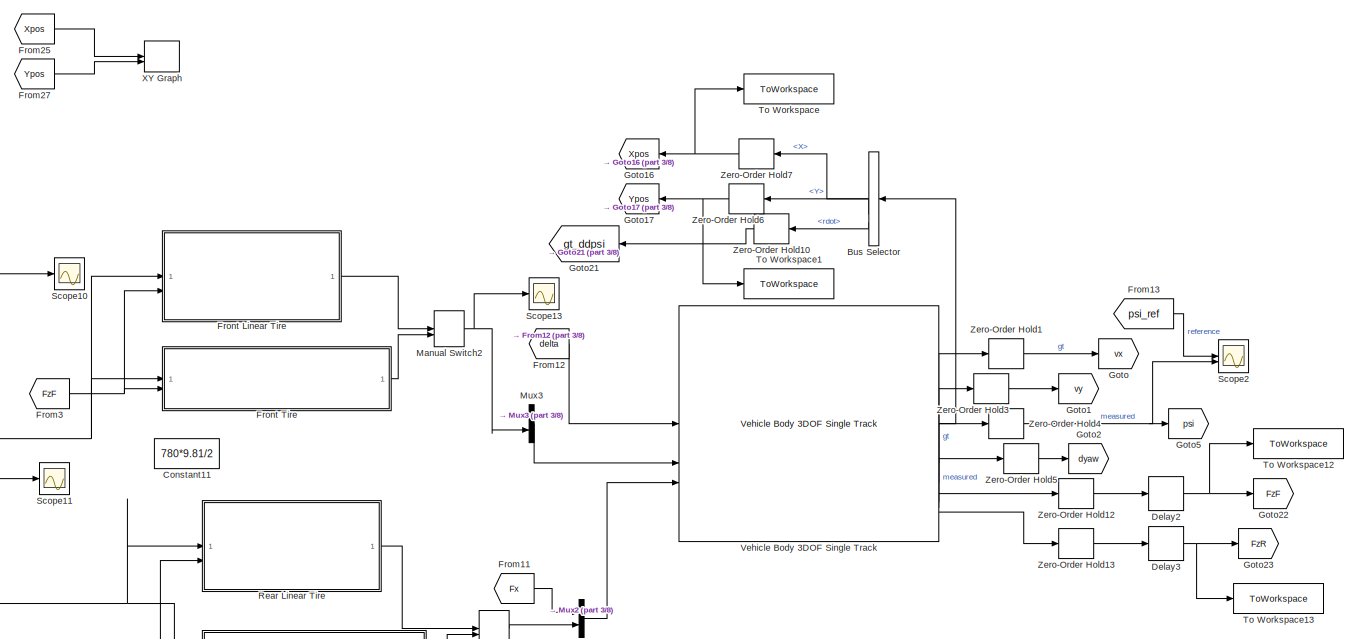
[diagram: root canvas - part 1/8, top center region]
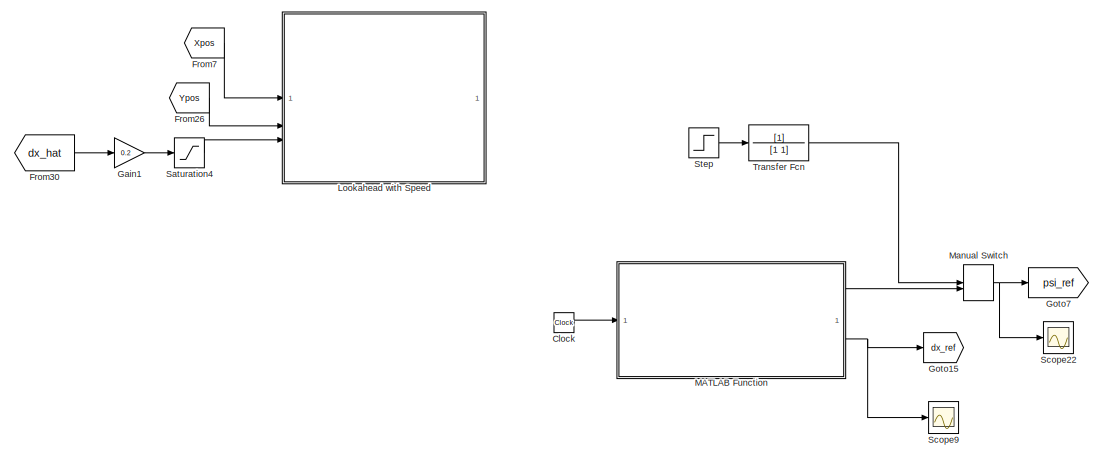
[diagram: root canvas - part 2/8, top left region]
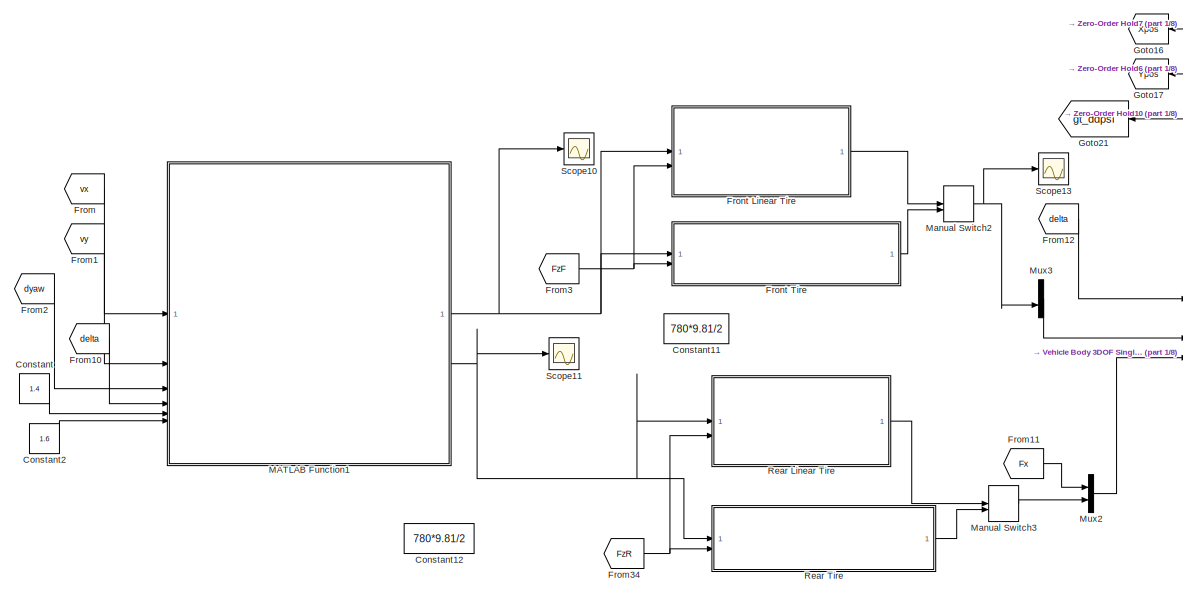
[diagram: root canvas - part 3/8, top center region]
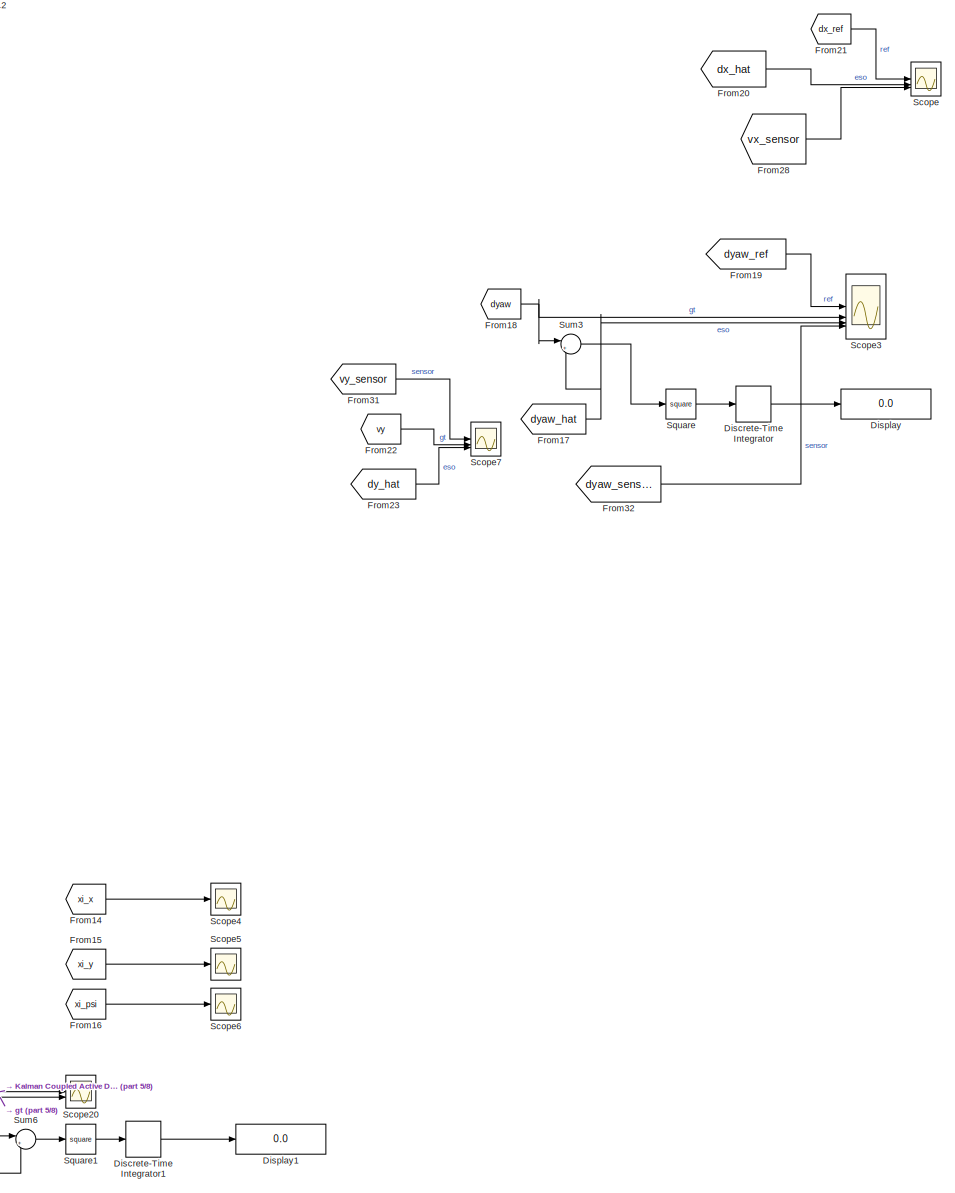
[diagram: root canvas - part 4/8, middle right region]
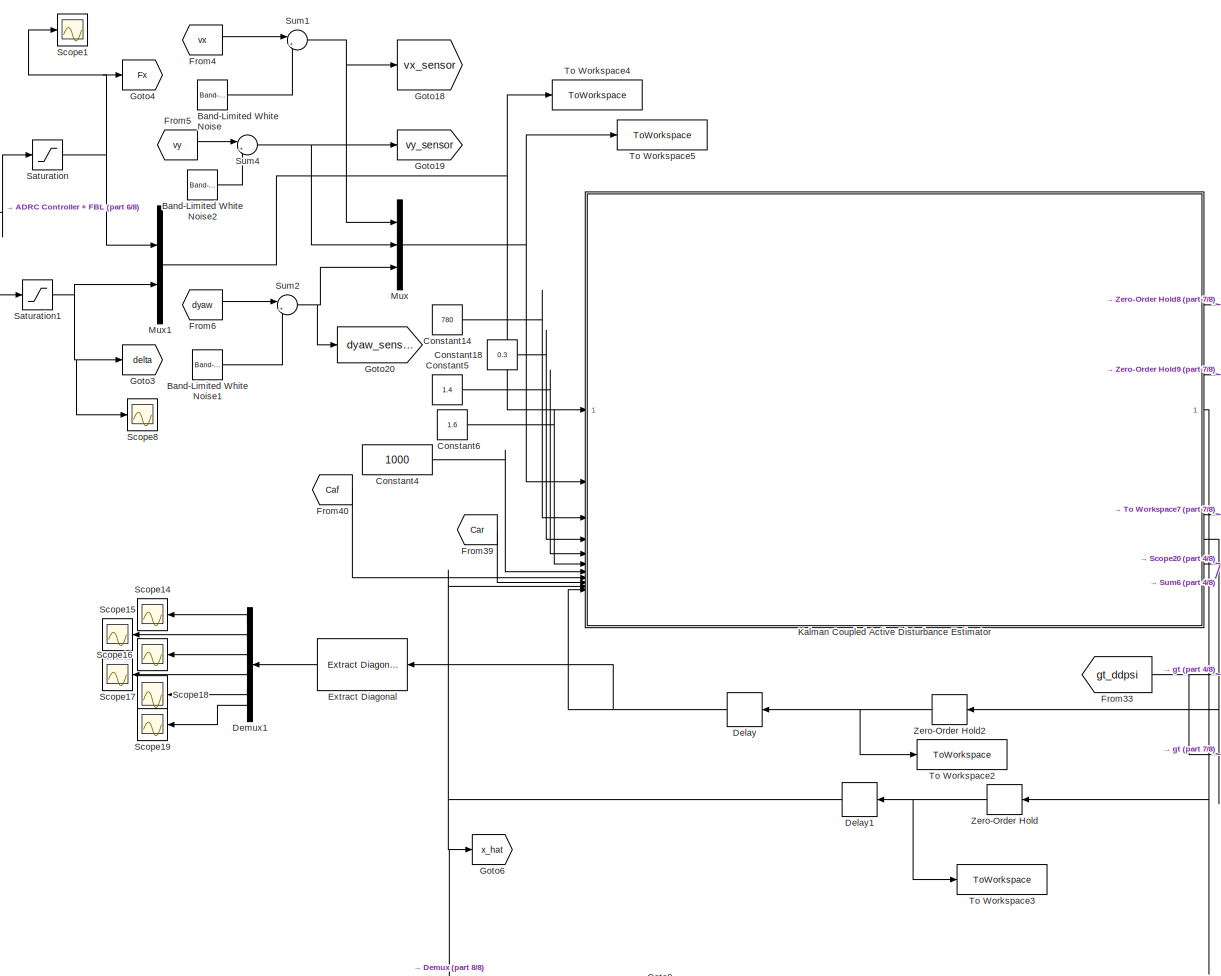
[diagram: root canvas - part 5/8, central region]
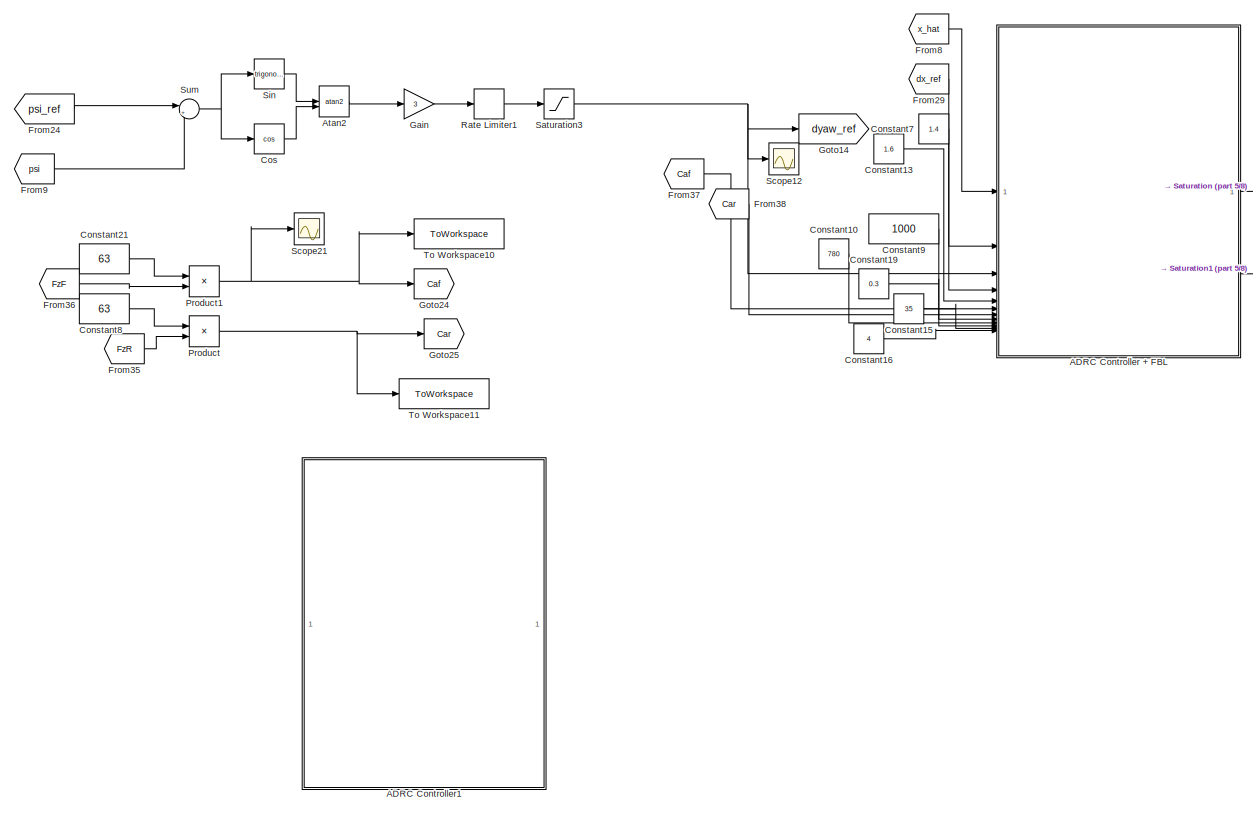
[diagram: root canvas - part 6/8, middle left region]
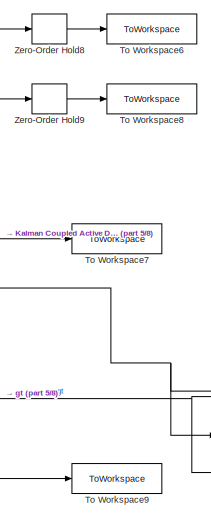
[diagram: root canvas - part 7/8, bottom right region]
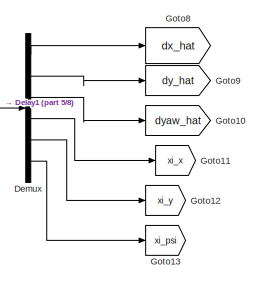
[diagram: root canvas - part 8/8, bottom center region]
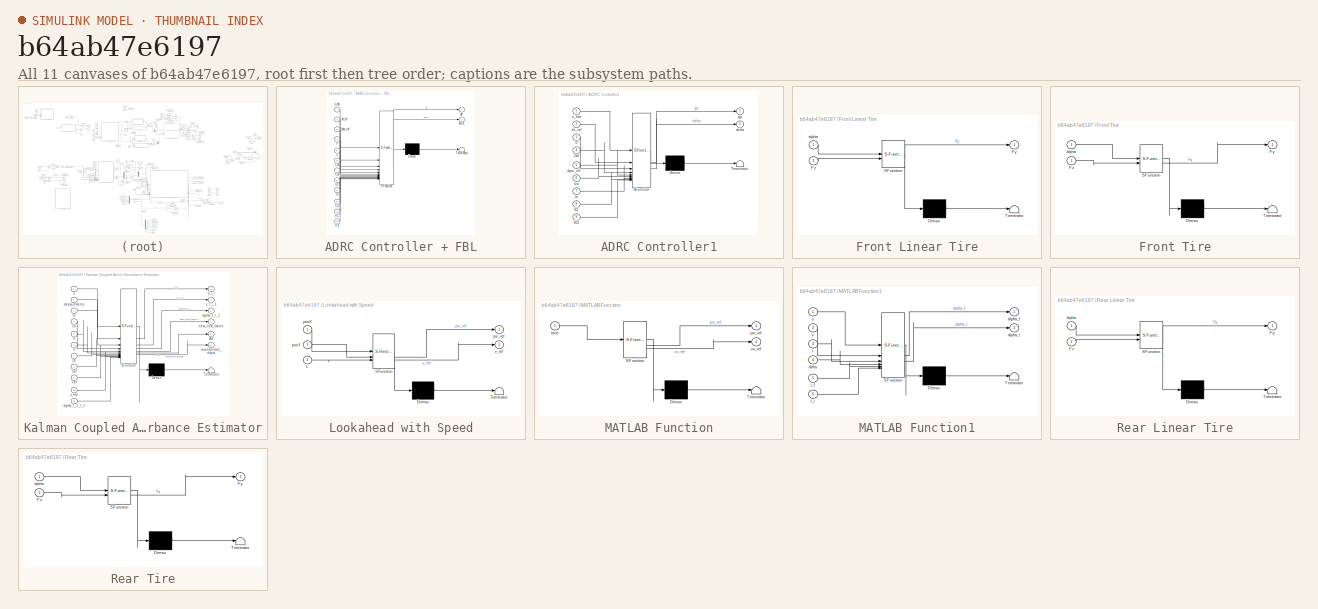
[diagram: thumbnail index - all 11 canvases of the model, root first then tree order]
MODEL slx_b64ab47e6197
KIND model
CONFIG AbsTol = auto
CONFIG EnableMultiTasking = off
CONFIG FixedStep = auto
CONFIG MaxStep = auto
CONFIG MinStep = auto
CONFIG RelTol = 1e-3
CONFIG SampleTimeConstraint = Unconstrained
CONFIG SolverName = VariableStepAuto
CONFIG StartTime = 0.0
CONFIG StopTime = 10
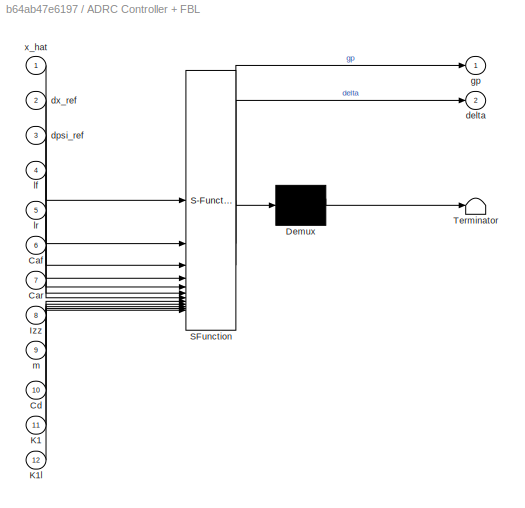
BLOCK [SubSystem] ADRC Controller + FBL
  ErrorFcn = Stateflow.Translate.translate
  PermitHierarchicalResolution = ExplicitOnly
  SFBlockType = MATLAB Function
  TreatAsAtomicUnit = on
BLOCK [Demux] ADRC Controller + FBL/ Demux 
  Outputs = 1
BLOCK [S-Function] ADRC Controller + FBL/ SFunction 
  EnableBusSupport = on
  FunctionName = sf_sfun
  PortCounts = [12 3]
  SFcnIsStateOwnerBlock = off
  SFunctionDeploymentMode = off
  Tag = Stateflow S-Function 4
BLOCK [Terminator] ADRC Controller + FBL/ Terminator 
BLOCK [Inport] ADRC Controller + FBL/Caf
  Port = 6
BLOCK [Inport] ADRC Controller + FBL/Car
  Port = 7
BLOCK [Inport] ADRC Controller + FBL/Cd
  Port = 10
BLOCK [Inport] ADRC Controller + FBL/Izz
  Port = 8
BLOCK [Inport] ADRC Controller + FBL/K1
  Port = 11
BLOCK [Inport] ADRC Controller + FBL/K1l
  Port = 12
BLOCK [Outport] ADRC Controller + FBL/delta
  Port = 2
BLOCK [Inport] ADRC Controller + FBL/dpsi_ref
  Port = 3
BLOCK [Inport] ADRC Controller + FBL/dx_ref
  Port = 2
BLOCK [Outport] ADRC Controller + FBL/gp
BLOCK [Inport] ADRC Controller + FBL/lf
  Port = 4
BLOCK [Inport] ADRC Controller + FBL/lr
  Port = 5
BLOCK [Inport] ADRC Controller + FBL/m
  Port = 9
BLOCK [Inport] ADRC Controller + FBL/x_hat
BLOCK [SubSystem] ADRC Controller1
  Commented = on
  ErrorFcn = Stateflow.Translate.translate
  PermitHierarchicalResolution = ExplicitOnly
  SFBlockType = MATLAB Function
  TreatAsAtomicUnit = on
BLOCK [Demux] ADRC Controller1/ Demux 
  Outputs = 1
BLOCK [S-Function] ADRC Controller1/ SFunction 
  EnableBusSupport = on
  FunctionName = sf_sfun
  PortCounts = [9 3]
  SFcnIsStateOwnerBlock = off
  SFunctionDeploymentMode = off
  Tag = Stateflow S-Function 5
BLOCK [Terminator] ADRC Controller1/ Terminator 
BLOCK [Inport] ADRC Controller1/Caf
  Port = 4
BLOCK [Inport] ADRC Controller1/Izz
  Port = 6
BLOCK [Inport] ADRC Controller1/K1
  Port = 8
BLOCK [Inport] ADRC Controller1/K1l
  Port = 9
BLOCK [Outport] ADRC Controller1/delta
  Port = 2
BLOCK [Inport] ADRC Controller1/dpsi_ref
  Port = 5
BLOCK [Inport] ADRC Controller1/dx_ref
  Port = 2
BLOCK [Outport] ADRC Controller1/gp
BLOCK [Inport] ADRC Controller1/lf
  Port = 3
BLOCK [Inport] ADRC Controller1/m
  Port = 7
BLOCK [Inport] ADRC Controller1/x_hat
BLOCK [Trigonometry] Atan2
  Operator = atan2
BLOCK [Reference] Band-Limited White Noise  REF=simulink/Sources/Band-Limited
White Noise
  SourceBlock = simulink/Sources/Band-Limited\nWhite Noise
  SourceType = Band-Limited White Noise.
BLOCK [Reference] Band-Limited White Noise1  REF=simulink/Sources/Band-Limited
White Noise
  SourceBlock = simulink/Sources/Band-Limited\nWhite Noise
  SourceType = Band-Limited White Noise.
BLOCK [Reference] Band-Limited White Noise2  REF=simulink/Sources/Band-Limited
White Noise
  SourceBlock = simulink/Sources/Band-Limited\nWhite Noise
  SourceType = Band-Limited White Noise.
BLOCK [BusSelector] Bus Selector
  OutputSignals = InertFrm.Cg.Disp.X,InertFrm.Cg.Disp.Y,BdyFrm.Cg.AngAcc.rdot
BLOCK [Clock] Clock
BLOCK [Constant] Constant
  Value = 1.4
BLOCK [Constant] Constant10
  Value = 780
BLOCK [Constant] Constant11
  Value = 780*9.81/2
BLOCK [Constant] Constant12
  Value = 780*9.81/2
BLOCK [Constant] Constant13
  Value = 1.6
BLOCK [Constant] Constant14
  Value = 780
BLOCK [Constant] Constant15
  Value = 35
BLOCK [Constant] Constant16
  Value = 4
BLOCK [Constant] Constant18
  Value = 0.3
BLOCK [Constant] Constant19
  Value = 0.3
BLOCK [Constant] Constant2
  Value = 1.6
BLOCK [Constant] Constant21
  Value = 63
BLOCK [Constant] Constant4
  Value = 1000
BLOCK [Constant] Constant5
  Value = 1.4
BLOCK [Constant] Constant6
  Value = 1.6
BLOCK [Constant] Constant7
  Value = 1.4
BLOCK [Constant] Constant8
  Value = 63
BLOCK [Constant] Constant9
  Value = 1000
BLOCK [Trigonometry] Cos
  Operator = cos
BLOCK [Delay] Delay
  DelayLength = 1
  InitialCondition = [eye(6)]*0
  InputPortMap = u0
  SampleTime = 0.01
BLOCK [Delay] Delay1
  DelayLength = 1
  InitialCondition = [5; 0; 0; 0; 0; 0]
  InputPortMap = u0
  SampleTime = 0.01
BLOCK [Delay] Delay2
  DelayLength = 1
  InitialCondition = 780*9.81/2
  InputPortMap = u0
  SampleTime = 0.01
BLOCK [Delay] Delay3
  DelayLength = 1
  InitialCondition = 780*9.81/2
  InputPortMap = u0
  SampleTime = 0.01
BLOCK [Demux] Demux
  Outputs = 6
BLOCK [Demux] Demux1
  Outputs = 6
BLOCK [DiscreteIntegrator] Discrete-Time Integrator
  ICPrevOutput = DiscIntNeverNeededParam
  ICPrevScaledInput = DiscIntNeverNeededParam
  InitialConditionSetting = Auto
  SampleTime = 0.01
BLOCK [DiscreteIntegrator] Discrete-Time Integrator1
  ICPrevOutput = DiscIntNeverNeededParam
  ICPrevScaledInput = DiscIntNeverNeededParam
  InitialConditionSetting = Auto
  SampleTime = 0.01
BLOCK [Display] Display
  Decimation = 1
BLOCK [Display] Display1
  Decimation = 1
BLOCK [Reference] Extract Diagonal  REF=matrix_library/Extract Diagonal
  LibrarySourceBlock = simulink/Matrix\nOperations/Extract Diagonal
  SourceBlock = matrix_library/Extract Diagonal
  SourceType = Extract Diagonal
BLOCK [From] From
  GotoTag = vx
BLOCK [From] From1
  GotoTag = vy
BLOCK [From] From10
  GotoTag = delta
BLOCK [From] From11
  GotoTag = Fx
BLOCK [From] From12
  GotoTag = delta
BLOCK [From] From13
  GotoTag = psi_ref
BLOCK [From] From14
  GotoTag = xi_x
BLOCK [From] From15
  GotoTag = xi_y
BLOCK [From] From16
  GotoTag = xi_psi
BLOCK [From] From17
  GotoTag = dyaw_hat
BLOCK [From] From18
  GotoTag = dyaw
BLOCK [From] From19
  GotoTag = dyaw_ref
BLOCK [From] From2
  GotoTag = dyaw
BLOCK [From] From20
  GotoTag = dx_hat
BLOCK [From] From21
  GotoTag = dx_ref
BLOCK [From] From22
  GotoTag = vy
BLOCK [From] From23
  GotoTag = dy_hat
BLOCK [From] From24
  GotoTag = psi_ref
BLOCK [From] From25
  GotoTag = Xpos
BLOCK [From] From26
  Commented = on
  GotoTag = Ypos
BLOCK [From] From27
  GotoTag = Ypos
BLOCK [From] From28
  GotoTag = vx_sensor
BLOCK [From] From29
  GotoTag = dx_ref
BLOCK [From] From3
  GotoTag = FzF
BLOCK [From] From30
  Commented = on
  GotoTag = dx_hat
BLOCK [From] From31
  GotoTag = vy_sensor
BLOCK [From] From32
  GotoTag = dyaw_sensor
BLOCK [From] From33
  GotoTag = gt_ddpsi
BLOCK [From] From34
  GotoTag = FzR
BLOCK [From] From35
  GotoTag = FzR
BLOCK [From] From36
  GotoTag = FzF
BLOCK [From] From37
  GotoTag = Caf
BLOCK [From] From38
  GotoTag = Car
BLOCK [From] From39
  GotoTag = Car
BLOCK [From] From4
  GotoTag = vx
BLOCK [From] From40
  GotoTag = Caf
BLOCK [From] From5
  GotoTag = vy
BLOCK [From] From6
  GotoTag = dyaw
BLOCK [From] From7
  Commented = on
  GotoTag = Xpos
BLOCK [From] From8
  GotoTag = x_hat
BLOCK [From] From9
  GotoTag = psi
BLOCK [SubSystem] Front Linear Tire
  ErrorFcn = Stateflow.Translate.translate
  PermitHierarchicalResolution = ExplicitOnly
  SFBlockType = MATLAB Function
  TreatAsAtomicUnit = on
BLOCK [Demux] Front Linear Tire/ Demux 
  Outputs = 1
BLOCK [S-Function] Front Linear Tire/ SFunction 
  EnableBusSupport = on
  FunctionName = sf_sfun
  PortCounts = [2 2]
  SFcnIsStateOwnerBlock = off
  SFunctionDeploymentMode = off
  Tag = Stateflow S-Function 9
BLOCK [Terminator] Front Linear Tire/ Terminator 
BLOCK [Outport] Front Linear Tire/Fy
BLOCK [Inport] Front Linear Tire/Fz
  Port = 2
BLOCK [Inport] Front Linear Tire/alpha
BLOCK [SubSystem] Front Tire
  ErrorFcn = Stateflow.Translate.translate
  PermitHierarchicalResolution = ExplicitOnly
  SFBlockType = MATLAB Function
  TreatAsAtomicUnit = on
BLOCK [Demux] Front Tire/ Demux 
  Outputs = 1
BLOCK [S-Function] Front Tire/ SFunction 
  EnableBusSupport = on
  FunctionName = sf_sfun
  PortCounts = [2 2]
  SFcnIsStateOwnerBlock = off
  SFunctionDeploymentMode = off
  Tag = Stateflow S-Function 3
BLOCK [Terminator] Front Tire/ Terminator 
BLOCK [Outport] Front Tire/Fy
BLOCK [Inport] Front Tire/Fz
  Port = 2
BLOCK [Inport] Front Tire/alpha
BLOCK [Gain] Gain
  Gain = 3
BLOCK [Gain] Gain1
  Commented = on
  Gain = 0.2
BLOCK [Goto] Goto
  GotoTag = vx
BLOCK [Goto] Goto1
  GotoTag = vy
BLOCK [Goto] Goto10
  GotoTag = dyaw_hat
BLOCK [Goto] Goto11
  GotoTag = xi_x
BLOCK [Goto] Goto12
  GotoTag = xi_y
BLOCK [Goto] Goto13
  GotoTag = xi_psi
BLOCK [Goto] Goto14
  GotoTag = dyaw_ref
BLOCK [Goto] Goto15
  GotoTag = dx_ref
BLOCK [Goto] Goto16
  GotoTag = Xpos
BLOCK [Goto] Goto17
  GotoTag = Ypos
BLOCK [Goto] Goto18
  GotoTag = vx_sensor
BLOCK [Goto] Goto19
  GotoTag = vy_sensor
BLOCK [Goto] Goto2
  GotoTag = dyaw
BLOCK [Goto] Goto20
  GotoTag = dyaw_sensor
BLOCK [Goto] Goto21
  GotoTag = gt_ddpsi
BLOCK [Goto] Goto22
  GotoTag = FzF
BLOCK [Goto] Goto23
  GotoTag = FzR
BLOCK [Goto] Goto24
  GotoTag = Caf
BLOCK [Goto] Goto25
  GotoTag = Car
BLOCK [Goto] Goto3
  GotoTag = delta
BLOCK [Goto] Goto4
  GotoTag = Fx
BLOCK [Goto] Goto5
  GotoTag = psi
BLOCK [Goto] Goto6
  GotoTag = x_hat
BLOCK [Goto] Goto7
  GotoTag = psi_ref
BLOCK [Goto] Goto8
  GotoTag = dx_hat
BLOCK [Goto] Goto9
  GotoTag = dy_hat
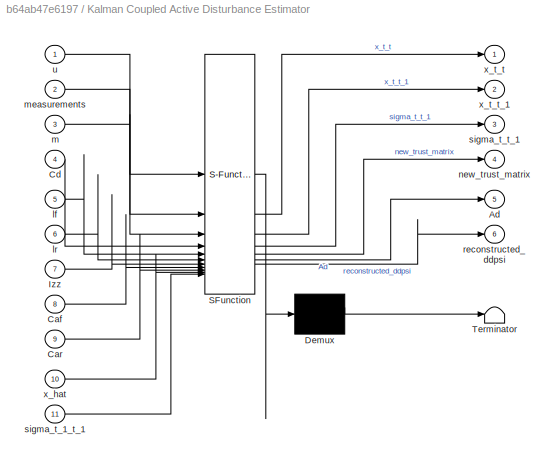
BLOCK [SubSystem] Kalman Coupled Active Disturbance Estimator
  ErrorFcn = Stateflow.Translate.translate
  PermitHierarchicalResolution = ExplicitOnly
  SFBlockType = MATLAB Function
  TreatAsAtomicUnit = on
BLOCK [Demux] Kalman Coupled Active Disturbance Estimator/ Demux 
  Outputs = 1
BLOCK [S-Function] Kalman Coupled Active Disturbance Estimator/ SFunction 
  EnableBusSupport = on
  FunctionName = sf_sfun
  PortCounts = [11 7]
  SFcnIsStateOwnerBlock = off
  SFunctionDeploymentMode = off
  Tag = Stateflow S-Function 6
BLOCK [Terminator] Kalman Coupled Active Disturbance Estimator/ Terminator 
BLOCK [Outport] Kalman Coupled Active Disturbance Estimator/Ad
  Port = 5
BLOCK [Inport] Kalman Coupled Active Disturbance Estimator/Caf
  Port = 8
BLOCK [Inport] Kalman Coupled Active Disturbance Estimator/Car
  Port = 9
BLOCK [Inport] Kalman Coupled Active Disturbance Estimator/Cd
  Port = 4
BLOCK [Inport] Kalman Coupled Active Disturbance Estimator/Izz
  Port = 7
BLOCK [Inport] Kalman Coupled Active Disturbance Estimator/lf
  Port = 5
BLOCK [Inport] Kalman Coupled Active Disturbance Estimator/lr
  Port = 6
BLOCK [Inport] Kalman Coupled Active Disturbance Estimator/m
  Port = 3
BLOCK [Inport] Kalman Coupled Active Disturbance Estimator/measurements
  Port = 2
BLOCK [Outport] Kalman Coupled Active Disturbance Estimator/new_trust_matrix
  Port = 4
BLOCK [Outport] Kalman Coupled Active Disturbance Estimator/reconstructed_ddpsi
  Port = 6
BLOCK [Inport] Kalman Coupled Active Disturbance Estimator/sigma_t_1_t_1
  Port = 11
BLOCK [Outport] Kalman Coupled Active Disturbance Estimator/sigma_t_t_1
  Port = 3
BLOCK [Inport] Kalman Coupled Active Disturbance Estimator/u
BLOCK [Inport] Kalman Coupled Active Disturbance Estimator/x_hat
  Port = 10
BLOCK [Outport] Kalman Coupled Active Disturbance Estimator/x_t_t
BLOCK [Outport] Kalman Coupled Active Disturbance Estimator/x_t_t_1
  Port = 2
BLOCK [SubSystem] Lookahead with Speed
  Commented = on
  ErrorFcn = Stateflow.Translate.translate
  PermitHierarchicalResolution = ExplicitOnly
  SFBlockType = MATLAB Function
  TreatAsAtomicUnit = on
BLOCK [Demux] Lookahead with Speed/ Demux 
  Outputs = 1
BLOCK [S-Function] Lookahead with Speed/ SFunction 
  EnableBusSupport = on
  FunctionName = sf_sfun
  Parameters = track
  PortCounts = [3 3]
  SFcnIsStateOwnerBlock = off
  SFunctionDeploymentMode = off
  Tag = Stateflow S-Function 8
BLOCK [Terminator] Lookahead with Speed/ Terminator 
BLOCK [Inport] Lookahead with Speed/L
  Port = 3
BLOCK [Inport] Lookahead with Speed/posX
BLOCK [Inport] Lookahead with Speed/posY
  Port = 2
BLOCK [Outport] Lookahead with Speed/psi_ref
BLOCK [Outport] Lookahead with Speed/v_ref
  Port = 2
BLOCK [SubSystem] MATLAB Function
  ErrorFcn = Stateflow.Translate.translate
  PermitHierarchicalResolution = ExplicitOnly
  SFBlockType = MATLAB Function
  TreatAsAtomicUnit = on
BLOCK [Demux] MATLAB Function/ Demux 
  Outputs = 1
BLOCK [S-Function] MATLAB Function/ SFunction 
  EnableBusSupport = on
  FunctionName = sf_sfun
  PortCounts = [1 3]
  SFcnIsStateOwnerBlock = off
  SFunctionDeploymentMode = off
  Tag = Stateflow S-Function 7
BLOCK [Terminator] MATLAB Function/ Terminator 
BLOCK [Outport] MATLAB Function/psi_ref
BLOCK [Inport] MATLAB Function/time
BLOCK [Outport] MATLAB Function/vx_ref
  Port = 2
BLOCK [SubSystem] MATLAB Function1
  ErrorFcn = Stateflow.Translate.translate
  PermitHierarchicalResolution = ExplicitOnly
  SFBlockType = MATLAB Function
  TreatAsAtomicUnit = on
BLOCK [Demux] MATLAB Function1/ Demux 
  Outputs = 1
BLOCK [S-Function] MATLAB Function1/ SFunction 
  EnableBusSupport = on
  FunctionName = sf_sfun
  PortCounts = [6 3]
  SFcnIsStateOwnerBlock = off
  SFunctionDeploymentMode = off
  Tag = Stateflow S-Function 1
BLOCK [Terminator] MATLAB Function1/ Terminator 
BLOCK [Outport] MATLAB Function1/alpha_f
BLOCK [Outport] MATLAB Function1/alpha_r
  Port = 2
BLOCK [Inport] MATLAB Function1/delta
  Port = 4
BLOCK [Inport] MATLAB Function1/l_f
  Port = 5
BLOCK [Inport] MATLAB Function1/l_r
  Port = 6
BLOCK [Inport] MATLAB Function1/r
  Port = 3
BLOCK [Inport] MATLAB Function1/u
BLOCK [Inport] MATLAB Function1/v
  Port = 2
BLOCK [ManualSwitch] Manual Switch
  CurrentSetting = 0
BLOCK [ManualSwitch] Manual Switch2
  CurrentSetting = 0
BLOCK [ManualSwitch] Manual Switch3
  CurrentSetting = 0
BLOCK [Mux] Mux
  DisplayOption = bar
  Inputs = 3
BLOCK [Mux] Mux1
  DisplayOption = bar
  Inputs = 2
BLOCK [Mux] Mux2
  DisplayOption = bar
  Inputs = 2
BLOCK [Mux] Mux3
  DisplayOption = bar
  Inputs = 2
BLOCK [Product] Product
BLOCK [Product] Product1
BLOCK [RateLimiter] Rate Limiter1
  FallingSlewLimit = -1.0
  RisingSlewLimit = 1.0
  SampleTimeMode = inherited
BLOCK [SubSystem] Rear Linear Tire
  ErrorFcn = Stateflow.Translate.translate
  PermitHierarchicalResolution = ExplicitOnly
  SFBlockType = MATLAB Function
  TreatAsAtomicUnit = on
BLOCK [Demux] Rear Linear Tire/ Demux 
  Outputs = 1
BLOCK [S-Function] Rear Linear Tire/ SFunction 
  EnableBusSupport = on
  FunctionName = sf_sfun
  PortCounts = [2 2]
  SFcnIsStateOwnerBlock = off
  SFunctionDeploymentMode = off
  Tag = Stateflow S-Function 10
BLOCK [Terminator] Rear Linear Tire/ Terminator 
BLOCK [Outport] Rear Linear Tire/Fy
BLOCK [Inport] Rear Linear Tire/Fz
  Port = 2
BLOCK [Inport] Rear Linear Tire/alpha
BLOCK [SubSystem] Rear Tire
  ErrorFcn = Stateflow.Translate.translate
  PermitHierarchicalResolution = ExplicitOnly
  SFBlockType = MATLAB Function
  TreatAsAtomicUnit = on
BLOCK [Demux] Rear Tire/ Demux 
  Outputs = 1
BLOCK [S-Function] Rear Tire/ SFunction 
  EnableBusSupport = on
  FunctionName = sf_sfun
  PortCounts = [2 2]
  SFcnIsStateOwnerBlock = off
  SFunctionDeploymentMode = off
  Tag = Stateflow S-Function 2
BLOCK [Terminator] Rear Tire/ Terminator 
BLOCK [Outport] Rear Tire/Fy
BLOCK [Inport] Rear Tire/Fz
  Port = 2
BLOCK [Inport] Rear Tire/alpha
BLOCK [Saturate] Saturation
  LowerLimit = -4000
  UpperLimit = 2000
BLOCK [Saturate] Saturation1
  LowerLimit = -0.262
  UpperLimit = 0.262
BLOCK [Saturate] Saturation3
  LowerLimit = -0.3
  UpperLimit = 0.3
BLOCK [Saturate] Saturation4
  Commented = on
  LowerLimit = 10
  UpperLimit = 50
BLOCK [Scope] Scope
  Floating = off
  NumInputPorts = 3
  ScopeSpecificationString = Simulink.scopes.TimeScopeBlockCfg('CurrentConfiguration', extmgr.ConfigurationSet(extmgr.Configuration('Core','General UI',true),extmgr.Configuration('Core','Source UI',true),extmgr.Configuration('Sources','WiredSimulink',true),extmgr.Configuration('Visuals','Time Domain',true,'SerializedDisplays',{struct('MinYLimReal','-1.96226','MaxYLimReal','67.31319','YLabelReal','','MinYLimMag','0.00000','Max...<+1568ch>
BLOCK [Scope] Scope1
  Floating = off
  NumInputPorts = 1
  ScopeSpecificationString = Simulink.scopes.TimeScopeBlockCfg('CurrentConfiguration', extmgr.ConfigurationSet(extmgr.Configuration('Core','General UI',true),extmgr.Configuration('Core','Source UI',true),extmgr.Configuration('Sources','WiredSimulink',true,'DataLoggingVariableName','ScopeData1'),extmgr.Configuration('Visuals','Time Domain',true,'SerializedDisplays',{struct('MinYLimReal','-4750.00000','MaxYLimReal','2750.00000'...<+1552ch>
BLOCK [Scope] Scope10
  Floating = off
  NumInputPorts = 1
  ScopeSpecificationString = Simulink.scopes.TimeScopeBlockCfg('CurrentConfiguration', extmgr.ConfigurationSet(extmgr.Configuration('Core','General UI',true),extmgr.Configuration('Core','Source UI',true),extmgr.Configuration('Sources','WiredSimulink',true,'DataLoggingVariableName','ScopeData10'),extmgr.Configuration('Visuals','Time Domain',true,'SerializedDisplays',{struct('MinYLimReal','-0.00198','MaxYLimReal','0.00313','YLa...<+1527ch>
BLOCK [Scope] Scope11
  Floating = off
  NumInputPorts = 1
  ScopeSpecificationString = Simulink.scopes.TimeScopeBlockCfg('CurrentConfiguration', extmgr.ConfigurationSet(extmgr.Configuration('Core','General UI',true),extmgr.Configuration('Core','Source UI',true),extmgr.Configuration('Sources','WiredSimulink',true,'DataLoggingVariableName','ScopeData11'),extmgr.Configuration('Visuals','Time Domain',true,'SerializedDisplays',{struct('MinYLimReal','-0.00161','MaxYLimReal','0.00348','YLa...<+1502ch>
BLOCK [Scope] Scope12
  Floating = off
  NumInputPorts = 1
  ScopeSpecificationString = Simulink.scopes.TimeScopeBlockCfg('CurrentConfiguration', extmgr.ConfigurationSet(extmgr.Configuration('Core','General UI',true),extmgr.Configuration('Core','Source UI',true),extmgr.Configuration('Sources','WiredSimulink',true,'DataLoggingVariableName','ScopeData2'),extmgr.Configuration('Visuals','Time Domain',true,'SerializedDisplays',{struct('MinYLimReal','-0.375','MaxYLimReal','0.375','YLabelRe...<+1476ch>
BLOCK [Scope] Scope13
  Floating = off
  NumInputPorts = 1
  ScopeSpecificationString = Simulink.scopes.TimeScopeBlockCfg('CurrentConfiguration', extmgr.ConfigurationSet(extmgr.Configuration('Core','General UI',true),extmgr.Configuration('Core','Source UI',true),extmgr.Configuration('Sources','WiredSimulink',true,'DataLoggingVariableName','ScopeData1'),extmgr.Configuration('Visuals','Time Domain',true,'SerializedDisplays',{struct('MinYLimReal','-1422.55156','MaxYLimReal','1251.0637',...<+1554ch>
BLOCK [Scope] Scope14
  Floating = off
  NumInputPorts = 1
  ScopeSpecificationString = Simulink.scopes.TimeScopeBlockCfg('CurrentConfiguration', extmgr.ConfigurationSet(extmgr.Configuration('Core','General UI',true),extmgr.Configuration('Core','Source UI',true),extmgr.Configuration('Sources','WiredSimulink',true,'DataLoggingVariableName','ScopeData1'),extmgr.Configuration('Visuals','Time Domain',true,'SerializedDisplays',{struct('MinYLimReal','-0.12375','MaxYLimReal','1.12486','YLab...<+1509ch>
BLOCK [Scope] Scope15
  Floating = off
  NumInputPorts = 1
  ScopeSpecificationString = Simulink.scopes.TimeScopeBlockCfg('CurrentConfiguration', extmgr.ConfigurationSet(extmgr.Configuration('Core','General UI',true),extmgr.Configuration('Core','Source UI',true),extmgr.Configuration('Sources','WiredSimulink',true,'DataLoggingVariableName','ScopeData2'),extmgr.Configuration('Visuals','Time Domain',true,'SerializedDisplays',{struct('MinYLimReal','-0.125','MaxYLimReal','1.125','YLabelRe...<+1473ch>
BLOCK [Scope] Scope16
  Floating = off
  NumInputPorts = 1
  ScopeSpecificationString = Simulink.scopes.TimeScopeBlockCfg('CurrentConfiguration', extmgr.ConfigurationSet(extmgr.Configuration('Core','General UI',true),extmgr.Configuration('Core','Source UI',true),extmgr.Configuration('Sources','WiredSimulink',true,'DataLoggingVariableName','ScopeData3'),extmgr.Configuration('Visuals','Time Domain',true,'SerializedDisplays',{struct('MinYLimReal','-0.12499','MaxYLimReal','1.125','YLabel...<+1477ch>
BLOCK [Scope] Scope17
  Floating = off
  NumInputPorts = 1
  ScopeSpecificationString = Simulink.scopes.TimeScopeBlockCfg('CurrentConfiguration', extmgr.ConfigurationSet(extmgr.Configuration('Core','General UI',true),extmgr.Configuration('Core','Source UI',true),extmgr.Configuration('Sources','WiredSimulink',true,'DataLoggingVariableName','ScopeData4'),extmgr.Configuration('Visuals','Time Domain',true,'SerializedDisplays',{struct('MinYLimReal','-17037.28503','MaxYLimReal','153345.565...<+1519ch>
BLOCK [Scope] Scope18
  Floating = off
  NumInputPorts = 1
  ScopeSpecificationString = Simulink.scopes.TimeScopeBlockCfg('CurrentConfiguration', extmgr.ConfigurationSet(extmgr.Configuration('Core','General UI',true),extmgr.Configuration('Core','Source UI',true),extmgr.Configuration('Sources','WiredSimulink',true,'DataLoggingVariableName','ScopeData5'),extmgr.Configuration('Visuals','Time Domain',true,'SerializedDisplays',{struct('MinYLimReal','-18040.52187','MaxYLimReal','162374.696...<+1519ch>
BLOCK [Scope] Scope19
  Floating = off
  NumInputPorts = 1
  ScopeSpecificationString = Simulink.scopes.TimeScopeBlockCfg('CurrentConfiguration', extmgr.ConfigurationSet(extmgr.Configuration('Core','General UI',true),extmgr.Configuration('Core','Source UI',true),extmgr.Configuration('Sources','WiredSimulink',true,'DataLoggingVariableName','ScopeData6'),extmgr.Configuration('Visuals','Time Domain',true,'SerializedDisplays',{struct('MinYLimReal','-4499.73592','MaxYLimReal','40497.62328...<+1510ch>
BLOCK [Scope] Scope2
  Floating = off
  NumInputPorts = 2
  ScopeSpecificationString = Simulink.scopes.TimeScopeBlockCfg('CurrentConfiguration', extmgr.ConfigurationSet(extmgr.Configuration('Core','General UI',true),extmgr.Configuration('Core','Source UI',true),extmgr.Configuration('Sources','WiredSimulink',true,'DataLoggingVariableName','ScopeData2'),extmgr.Configuration('Visuals','Time Domain',true,'SerializedDisplays',{struct('MinYLimReal','-0.00639','MaxYLimReal','0.05589','YLab...<+1540ch>
BLOCK [Scope] Scope20
  Floating = off
  NumInputPorts = 2
  ScopeSpecificationString = Simulink.scopes.TimeScopeBlockCfg('CurrentConfiguration', extmgr.ConfigurationSet(extmgr.Configuration('Core','General UI',true),extmgr.Configuration('Core','Source UI',true),extmgr.Configuration('Sources','WiredSimulink',true,'DataLoggingVariableName','ScopeData1'),extmgr.Configuration('Visuals','Time Domain',true,'SerializedDisplays',{struct('MinYLimReal','-0.67743','MaxYLimReal','0.49658','YLab...<+1586ch>
BLOCK [Scope] Scope21
  Floating = off
  NumInputPorts = 1
  ScopeSpecificationString = Simulink.scopes.TimeScopeBlockCfg('CurrentConfiguration', extmgr.ConfigurationSet(extmgr.Configuration('Core','General UI',true),extmgr.Configuration('Core','Source UI',true),extmgr.Configuration('Sources','WiredSimulink',true,'DataLoggingVariableName','ScopeData2'),extmgr.Configuration('Visuals','Time Domain',true,'SerializedDisplays',{struct('MinYLimReal','106396.94772','MaxYLimReal','255991.116...<+1566ch>
BLOCK [Scope] Scope22
  Floating = off
  NumInputPorts = 1
  ScopeSpecificationString = Simulink.scopes.TimeScopeBlockCfg('CurrentConfiguration', extmgr.ConfigurationSet(extmgr.Configuration('Core','General UI',true),extmgr.Configuration('Core','Source UI',true),extmgr.Configuration('Sources','WiredSimulink',true,'DataLoggingVariableName','ScopeData2'),extmgr.Configuration('Visuals','Time Domain',true,'SerializedDisplays',{struct('MinYLimReal','-0.05494','MaxYLimReal','0.06192','YLab...<+1489ch>
BLOCK [Scope] Scope3
  Floating = off
  NumInputPorts = 4
  ScopeSpecificationString = Simulink.scopes.TimeScopeBlockCfg('CurrentConfiguration', extmgr.ConfigurationSet(extmgr.Configuration('Core','General UI',true),extmgr.Configuration('Core','Source UI',true),extmgr.Configuration('Sources','WiredSimulink',true,'DataLoggingVariableName','ScopeData3'),extmgr.Configuration('Visuals','Time Domain',true,'SerializedDisplays',{struct('MinYLimReal','-0.03637','MaxYLimReal','0.07715','YLab...<+1665ch>
BLOCK [Scope] Scope4
  Floating = off
  NumInputPorts = 1
  ScopeSpecificationString = Simulink.scopes.TimeScopeBlockCfg('CurrentConfiguration', extmgr.ConfigurationSet(extmgr.Configuration('Core','General UI',true),extmgr.Configuration('Core','Source UI',true),extmgr.Configuration('Sources','WiredSimulink',true,'DataLoggingVariableName','ScopeData4'),extmgr.Configuration('Visuals','Time Domain',true,'SerializedDisplays',{struct('MinYLimReal','-899.46876','MaxYLimReal','612.78211','...<+1522ch>
BLOCK [Scope] Scope5
  Floating = off
  NumInputPorts = 1
  ScopeSpecificationString = Simulink.scopes.TimeScopeBlockCfg('CurrentConfiguration', extmgr.ConfigurationSet(extmgr.Configuration('Core','General UI',true),extmgr.Configuration('Core','Source UI',true),extmgr.Configuration('Sources','WiredSimulink',true,'DataLoggingVariableName','ScopeData5'),extmgr.Configuration('Visuals','Time Domain',true,'SerializedDisplays',{struct('MinYLimReal','-376.65444','MaxYLimReal','2832.72081',...<+1545ch>
BLOCK [Scope] Scope6
  Floating = off
  NumInputPorts = 1
  ScopeSpecificationString = Simulink.scopes.TimeScopeBlockCfg('CurrentConfiguration', extmgr.ConfigurationSet(extmgr.Configuration('Core','General UI',true),extmgr.Configuration('Core','Source UI',true),extmgr.Configuration('Sources','WiredSimulink',true,'DataLoggingVariableName','ScopeData6'),extmgr.Configuration('Visuals','Time Domain',true,'SerializedDisplays',{struct('MinYLimReal','-4263764.61305','MaxYLimReal','477737.9...<+1569ch>
BLOCK [Scope] Scope7
  Floating = off
  NumInputPorts = 3
  ScopeSpecificationString = Simulink.scopes.TimeScopeBlockCfg('CurrentConfiguration', extmgr.ConfigurationSet(extmgr.Configuration('Core','General UI',true),extmgr.Configuration('Core','Source UI',true),extmgr.Configuration('Sources','WiredSimulink',true,'DataLoggingVariableName','ScopeData7'),extmgr.Configuration('Visuals','Time Domain',true,'SerializedDisplays',{struct('MinYLimReal','-0.01629','MaxYLimReal','0.02942','YLab...<+1604ch>
BLOCK [Scope] Scope8
  Floating = off
  NumInputPorts = 1
  ScopeSpecificationString = Simulink.scopes.TimeScopeBlockCfg('CurrentConfiguration', extmgr.ConfigurationSet(extmgr.Configuration('Core','General UI',true),extmgr.Configuration('Core','Source UI',true),extmgr.Configuration('Sources','WiredSimulink',true,'DataLoggingVariableName','ScopeData1'),extmgr.Configuration('Visuals','Time Domain',true,'SerializedDisplays',{struct('MinYLimReal','-0.0389','MaxYLimReal','0.03502','YLabe...<+1529ch>
BLOCK [Scope] Scope9
  Floating = off
  NumInputPorts = 1
  ScopeSpecificationString = Simulink.scopes.TimeScopeBlockCfg('CurrentConfiguration', extmgr.ConfigurationSet(extmgr.Configuration('Core','General UI',true),extmgr.Configuration('Core','Source UI',true),extmgr.Configuration('Sources','WiredSimulink',true,'DataLoggingVariableName','ScopeData1'),extmgr.Configuration('Visuals','Time Domain',true,'SerializedDisplays',{struct('MinYLimReal','-5.00000','MaxYLimReal','45.00000','YLa...<+1546ch>
BLOCK [Trigonometry] Sin
BLOCK [Math] Square
  Operator = square
BLOCK [Math] Square1
  Operator = square
BLOCK [Step] Step
  After = 0.05
  SampleTime = 0
  Time = 5
BLOCK [Sum] Sum
  Inputs = |+-
BLOCK [Sum] Sum1
  Inputs = |++
BLOCK [Sum] Sum2
  Inputs = |++
BLOCK [Sum] Sum3
  Inputs = |+-
BLOCK [Sum] Sum4
  Inputs = |++
BLOCK [Sum] Sum6
  Inputs = |+-
BLOCK [ToWorkspace] To Workspace
  FixptAsFi = on
  MaxDataPoints = inf
  SampleTime = 0.01
  VariableName = Xpos
BLOCK [ToWorkspace] To Workspace1
  FixptAsFi = on
  MaxDataPoints = inf
  SampleTime = 0.01
  VariableName = Ypos
BLOCK [ToWorkspace] To Workspace10
  FixptAsFi = on
  MaxDataPoints = inf
  SampleTime = 0.01
  SaveFormat = Timeseries
  VariableName = Caf
BLOCK [ToWorkspace] To Workspace11
  FixptAsFi = on
  MaxDataPoints = inf
  SampleTime = 0.01
  SaveFormat = Timeseries
  VariableName = Car
BLOCK [ToWorkspace] To Workspace12
  FixptAsFi = on
  MaxDataPoints = inf
  SampleTime = 0.01
  SaveFormat = Timeseries
  VariableName = FzF
BLOCK [ToWorkspace] To Workspace13
  FixptAsFi = on
  MaxDataPoints = inf
  SampleTime = 0.01
  SaveFormat = Timeseries
  VariableName = FzR
BLOCK [ToWorkspace] To Workspace2
  FixptAsFi = on
  MaxDataPoints = inf
  SampleTime = 0.01
  Save2DSignal = 2-D array (concatenate along first dimension)
  SaveFormat = Timeseries
  VariableName = sigma_t_t
BLOCK [ToWorkspace] To Workspace3
  FixptAsFi = on
  MaxDataPoints = inf
  SampleTime = 0.01
  SaveFormat = Timeseries
  VariableName = x_t_t
BLOCK [ToWorkspace] To Workspace4
  FixptAsFi = on
  MaxDataPoints = inf
  SampleTime = 0.01
  SaveFormat = Timeseries
  VariableName = u
BLOCK [ToWorkspace] To Workspace5
  FixptAsFi = on
  MaxDataPoints = inf
  SampleTime = 0.01
  SaveFormat = Timeseries
  VariableName = measurements
BLOCK [ToWorkspace] To Workspace6
  FixptAsFi = on
  MaxDataPoints = inf
  SampleTime = 0.01
  SaveFormat = Timeseries
  VariableName = x_t_t_1
BLOCK [ToWorkspace] To Workspace7
  FixptAsFi = on
  MaxDataPoints = inf
  SampleTime = 0.01
  SaveFormat = Timeseries
  VariableName = Ad
BLOCK [ToWorkspace] To Workspace8
  FixptAsFi = on
  MaxDataPoints = inf
  SampleTime = 0.01
  Save2DSignal = 2-D array (concatenate along first dimension)
  SaveFormat = Timeseries
  VariableName = sigma_t_t_1
BLOCK [ToWorkspace] To Workspace9
  FixptAsFi = on
  MaxDataPoints = inf
  SampleTime = 0.01
  SaveFormat = Timeseries
  VariableName = gt_ddpsi
BLOCK [TransferFcn] Transfer Fcn
  Denominator = [1 1]
BLOCK [Reference] Vehicle Body 3DOF Single Track  REF=autolibshared/Vehicle Body 3DOF Single Track
  LibrarySourceBlock = vehdynlibeom/Vehicle Body 3DOF Single Track
  SourceBlock = autolibshared/Vehicle Body 3DOF Single Track
  SourceType = Vehicle Body 3DOF Lateral
BLOCK [Record] XY Graph
  CompatibilityTag = XY
  FileSettingsInternal = {"entries":[{"content":{"excelSettings":{"content":{},"type":"Streamout.ExcelSettings"}},"type":"Streamout.FileSettingStorage","uuid":""}],"packageUris":["http:\/\/schema.mathworks.com\/mf0\/streamout_blocks\/R2020a"],"version":"1.0"}
  Layout = [1 1]
  SignalsInternal = {"entries":[{"content":{"signals":[{"content":{"blockPath":[],"dimensions":[1],"domain":"","lineColor":"#a2142f","plots":[ 1 ],"port":1,"sid":[""],"signalID":1,"signalName":"From25"},"type":"RecordBlkView.Signal","uuid":""},{"content":{"blockPath":[],"dimensions":[1],"domain":"","lineColor":"#139fff","plots":[ 1 ],"port":2,"sid":[""],"signalID":2,"signalName":"From27"},"type":"RecordBlkView.Signal...<+158ch>
  VisualizationBindings = {"xyplotplugin":{"info":[{"series":[{"bindingParametersList":[{"parameter":"X-Axis","signalID":1,"signalName":"From25"},{"parameter":"Y-Axis","signalID":2,"signalName":"From27"}],"seriesID":0}],"subplotID":1}]}}
BLOCK [ZeroOrderHold] Zero-Order Hold
  SampleTime = 0.01
BLOCK [ZeroOrderHold] Zero-Order Hold1
  SampleTime = 0.01
BLOCK [ZeroOrderHold] Zero-Order Hold10
  SampleTime = 0.01
BLOCK [ZeroOrderHold] Zero-Order Hold12
  SampleTime = 0.01
BLOCK [ZeroOrderHold] Zero-Order Hold13
  SampleTime = 0.01
BLOCK [ZeroOrderHold] Zero-Order Hold2
  SampleTime = 0.01
BLOCK [ZeroOrderHold] Zero-Order Hold3
  SampleTime = 0.01
BLOCK [ZeroOrderHold] Zero-Order Hold4
  SampleTime = 0.01
BLOCK [ZeroOrderHold] Zero-Order Hold5
  SampleTime = 0.01
BLOCK [ZeroOrderHold] Zero-Order Hold6
  SampleTime = 0.01
BLOCK [ZeroOrderHold] Zero-Order Hold7
  SampleTime = 0.01
BLOCK [ZeroOrderHold] Zero-Order Hold8
  SampleTime = 0.01
BLOCK [ZeroOrderHold] Zero-Order Hold9
  SampleTime = 0.01
LINE ADRC Controller + FBL:1 -> Saturation:1
LINE ADRC Controller + FBL:2 -> Saturation1:1
LINE Atan2:1 -> Gain:1
LINE Band-Limited White Noise1:1 -> Sum2:2
LINE Band-Limited White Noise2:1 -> Sum4:2
LINE Band-Limited White Noise:1 -> Sum1:2
LINE Bus Selector:1 -> Zero-Order Hold7:1
LINE Bus Selector:2 -> Zero-Order Hold6:1
LINE Bus Selector:3 -> Zero-Order Hold10:1
LINE Clock:1 -> MATLAB Function:1
LINE Constant10:1 -> ADRC Controller + FBL:9
LINE Constant13:1 -> ADRC Controller + FBL:5
LINE Constant14:1 -> Kalman Coupled Active Disturbance Estimator:3
LINE Constant15:1 -> ADRC Controller + FBL:11
LINE Constant16:1 -> ADRC Controller + FBL:12
LINE Constant18:1 -> Kalman Coupled Active Disturbance Estimator:4
LINE Constant19:1 -> ADRC Controller + FBL:10
LINE Constant21:1 -> Product1:1
LINE Constant2:1 -> MATLAB Function1:6
LINE Constant4:1 -> Kalman Coupled Active Disturbance Estimator:7
LINE Constant5:1 -> Kalman Coupled Active Disturbance Estimator:5
LINE Constant6:1 -> Kalman Coupled Active Disturbance Estimator:6
LINE Constant7:1 -> ADRC Controller + FBL:4
LINE Constant8:1 -> Product:1
LINE Constant9:1 -> ADRC Controller + FBL:8
LINE Constant:1 -> MATLAB Function1:5
LINE Cos:1 -> Atan2:2
NET Delay1:1 -> Demux:1, Goto6:1, Kalman Coupled Active Disturbance Estimator:10
NET Delay2:1 -> Goto22:1, To Workspace12:1
NET Delay3:1 -> Goto23:1, To Workspace13:1
NET Delay:1 -> Extract Diagonal:1, Kalman Coupled Active Disturbance Estimator:11
LINE Demux1:1 -> Scope14:1
LINE Demux1:2 -> Scope15:1
LINE Demux1:3 -> Scope16:1
LINE Demux1:4 -> Scope17:1
LINE Demux1:5 -> Scope18:1
LINE Demux1:6 -> Scope19:1
LINE Demux:1 -> Goto8:1
LINE Demux:2 -> Goto9:1
LINE Demux:3 -> Goto10:1
LINE Demux:4 -> Goto11:1
LINE Demux:5 -> Goto12:1
LINE Demux:6 -> Goto13:1
LINE Discrete-Time Integrator1:1 -> Display1:1
LINE Discrete-Time Integrator:1 -> Display:1
LINE Extract Diagonal:1 -> Demux1:1
LINE From10:1 -> MATLAB Function1:4
LINE From11:1 -> Mux2:1
LINE From12:1 -> Vehicle Body 3DOF Single Track:1
LINE From13:1 -> Scope2:1
LINE From14:1 -> Scope4:1
LINE From15:1 -> Scope5:1
LINE From16:1 -> Scope6:1
NET From17:1 -> Scope3:3, Sum3:2
NET From18:1 -> Scope3:2, Sum3:1
LINE From19:1 -> Scope3:1
LINE From1:1 -> MATLAB Function1:2
LINE From20:1 -> Scope:2
LINE From21:1 -> Scope:1
LINE From22:1 -> Scope7:2
LINE From23:1 -> Scope7:3
LINE From24:1 -> Sum:1
LINE From25:1 -> XY Graph:1
LINE From26:1 -> Lookahead with Speed:2
LINE From27:1 -> XY Graph:2
LINE From28:1 -> Scope:3
LINE From29:1 -> ADRC Controller + FBL:2
LINE From2:1 -> MATLAB Function1:3
LINE From30:1 -> Gain1:1
LINE From31:1 -> Scope7:1
LINE From32:1 -> Scope3:4
NET From33:1 -> Scope20:2, Sum6:2, To Workspace9:1
NET From34:1 -> Rear Linear Tire:2, Rear Tire:2
LINE From35:1 -> Product:2
LINE From36:1 -> Product1:2
LINE From37:1 -> ADRC Controller + FBL:6
LINE From38:1 -> ADRC Controller + FBL:7
LINE From39:1 -> Kalman Coupled Active Disturbance Estimator:9
NET From3:1 -> Front Linear Tire:2, Front Tire:2
LINE From40:1 -> Kalman Coupled Active Disturbance Estimator:8
LINE From4:1 -> Sum1:1
LINE From5:1 -> Sum4:1
LINE From6:1 -> Sum2:1
LINE From7:1 -> Lookahead with Speed:1
LINE From8:1 -> ADRC Controller + FBL:1
LINE From9:1 -> Sum:2
LINE From:1 -> MATLAB Function1:1
LINE Front Linear Tire:1 -> Manual Switch2:1
LINE Front Tire:1 -> Manual Switch2:2
LINE Gain1:1 -> Saturation4:1
LINE Gain:1 -> Rate Limiter1:1
LINE Kalman Coupled Active Disturbance Estimator:1 -> Zero-Order Hold:1
LINE Kalman Coupled Active Disturbance Estimator:2 -> Zero-Order Hold8:1
LINE Kalman Coupled Active Disturbance Estimator:3 -> Zero-Order Hold9:1
LINE Kalman Coupled Active Disturbance Estimator:4 -> Zero-Order Hold2:1
LINE Kalman Coupled Active Disturbance Estimator:5 -> To Workspace7:1
NET Kalman Coupled Active Disturbance Estimator:6 -> Scope20:1, Sum6:1
NET MATLAB Function1:1 -> Front Linear Tire:1, Front Tire:1, Scope10:1
NET MATLAB Function1:2 -> Rear Linear Tire:1, Rear Tire:1, Scope11:1
LINE MATLAB Function:1 -> Manual Switch:2
NET MATLAB Function:2 -> Goto15:1, Scope9:1
NET Manual Switch2:1 -> Mux3:2, Scope13:1
LINE Manual Switch3:1 -> Mux2:2
NET Manual Switch:1 -> Goto7:1, Scope22:1
NET Mux1:1 -> Kalman Coupled Active Disturbance Estimator:1, To Workspace4:1
LINE Mux2:1 -> Vehicle Body 3DOF Single Track:3
LINE Mux3:1 -> Vehicle Body 3DOF Single Track:2
NET Mux:1 -> Kalman Coupled Active Disturbance Estimator:2, To Workspace5:1
NET Product1:1 -> Goto24:1, Scope21:1, To Workspace10:1
NET Product:1 -> Goto25:1, To Workspace11:1
LINE Rate Limiter1:1 -> Saturation3:1
LINE Rear Linear Tire:1 -> Manual Switch3:1
LINE Rear Tire:1 -> Manual Switch3:2
NET Saturation1:1 -> Goto3:1, Mux1:2, Scope8:1
NET Saturation3:1 -> ADRC Controller + FBL:3, Goto14:1, Scope12:1
LINE Saturation4:1 -> Lookahead with Speed:3
NET Saturation:1 -> Goto4:1, Mux1:1, Scope1:1
LINE Sin:1 -> Atan2:1
LINE Square1:1 -> Discrete-Time Integrator1:1
LINE Square:1 -> Discrete-Time Integrator:1
LINE Step:1 -> Transfer Fcn:1
NET Sum1:1 -> Goto18:1, Mux:1
NET Sum2:1 -> Goto20:1, Mux:3
LINE Sum3:1 -> Square:1
NET Sum4:1 -> Goto19:1, Mux:2
LINE Sum6:1 -> Square1:1
NET Sum:1 -> Cos:1, Sin:1
LINE Transfer Fcn:1 -> Manual Switch:1
LINE Vehicle Body 3DOF Single Track:1 -> Bus Selector:1
LINE Vehicle Body 3DOF Single Track:2 -> Zero-Order Hold1:1
LINE Vehicle Body 3DOF Single Track:3 -> Zero-Order Hold3:1
LINE Vehicle Body 3DOF Single Track:4 -> Zero-Order Hold4:1
LINE Vehicle Body 3DOF Single Track:5 -> Zero-Order Hold5:1
LINE Vehicle Body 3DOF Single Track:6 -> Zero-Order Hold12:1
LINE Vehicle Body 3DOF Single Track:7 -> Zero-Order Hold13:1
LINE Zero-Order Hold10:1 -> Goto21:1
LINE Zero-Order Hold12:1 -> Delay2:1
LINE Zero-Order Hold13:1 -> Delay3:1
LINE Zero-Order Hold1:1 -> Goto:1
NET Zero-Order Hold2:1 -> Delay:1, To Workspace2:1
LINE Zero-Order Hold3:1 -> Goto1:1
NET Zero-Order Hold4:1 -> Goto5:1, Scope2:2
LINE Zero-Order Hold5:1 -> Goto2:1
NET Zero-Order Hold6:1 -> Goto17:1, To Workspace1:1
NET Zero-Order Hold7:1 -> Goto16:1, To Workspace:1
LINE Zero-Order Hold8:1 -> To Workspace6:1
LINE Zero-Order Hold9:1 -> To Workspace8:1
NET Zero-Order Hold:1 -> Delay1:1, To Workspace3:1
note: NET lines group one-source signal fan-out (src -> all destinations, sorted); 1:1 wires keep LINE
CHART MATLAB Function states=1 transitions=1
  STATE_LABEL 'eML_blk_kernel()'
  STATE_LABEL 'SCRIPT:\nfunction [psi_ref, vx_ref] = generate_identification_trajectory(time)\n%#codegen\n% Generates feasible, persistently exciting reference signals for \n% Vehicle System Identification.\n%\n% INPUT:\n%   time: Current simulation time (seconds)\n%\n% OUTPUTS:\n%   psi_ref: Global heading reference (radians)\n%   vx_ref:  Longitudinal velocity reference (m/s) [10 to 40 m/s]\n\n    % --- CONFIGURATION ---\n ...<+1986ch>'
CHART Lookahead with Speed states=1 transitions=1
  STATE_LABEL 'eML_blk_kernel()'
  STATE_LABEL 'SCRIPT:\nfunction [psi_ref, v_ref] = fcn(posX, posY, L, track)\n%#codegen\n% This is a ROBUST lookahead path follower.\n% It finds a target point \'L\' meters away but, crucially,\n% it only searches a small window of the track to prevent\n% getting "stuck" on the wrong side or "jumping" at corners.\n\n% --- 1. Find the "Anchor Point" (Closest Point) ---\n% This is just our \'anchor\' to know where we are.\ndx_...<+1515ch>'
CHART Front Linear Tire states=1 transitions=1
  STATE_LABEL 'eML_blk_kernel()'
  STATE_LABEL 'SCRIPT:\nfunction Fy = linear_tire_model(alpha, Fz)\n    % Implements a simple LINEAR tire model.\n    %\n    % Fy = C_alpha * alpha\n    %\n    % To be a fair comparison to your Pacejka block, we define\n    % C_alpha as the initial slope of the Pacejka curve, which\n    % is load-dependent.\n    \n    % TIRE PACEJKA PARAMS (from your simple_pacejka_lat block):\n    B = 22; \n    C = 1.8; \n    D = 1.6;\n    \n...<+461ch>'
CHART Rear Linear Tire states=1 transitions=1
  STATE_LABEL 'eML_blk_kernel()'
  STATE_LABEL 'SCRIPT:\nfunction Fy = linear_tire_model(alpha, Fz)\n    % Implements a simple LINEAR tire model.\n    %\n    % Fy = C_alpha * alpha\n    %\n    % To be a fair comparison to your Pacejka block, we define\n    % C_alpha as the initial slope of the Pacejka curve, which\n    % is load-dependent.\n    \n    % TIRE PACEJKA PARAMS (from your simple_pacejka_lat block):\n    B = 22; \n    C = 1.8; \n    D = 1.6;\n    \n...<+462ch>'
CHART MATLAB Function1 states=1 transitions=1
  STATE_LABEL 'eML_blk_kernel()'
  STATE_LABEL 'SCRIPT:\nfunction [alpha_f, alpha_r] = calc_bicycle_slip_angles(u, v, r, delta, l_f, l_r)\n%#codegen\n% Calculates the front and rear slip angles for a single-track (bicycle) model.\n%\n% INPUTS:\n%   u:        Vehicle longitudinal velocity (at CG) [m/s]\n%   v:        Vehicle lateral velocity (at CG) [m/s]\n%   r:        Vehicle yaw rate [rad/s]\n%   delta:    Front steering angle (from controller) [rad]\n...<+1069ch>'
CHART Rear Tire states=1 transitions=1
  STATE_LABEL 'eML_blk_kernel()'
  STATE_LABEL "SCRIPT:\nfunction Fy = simple_pacejka_lat(alpha, Fz)\n\n    % Implements the simple Pacejka '89 lateral force model.\n    %\n    % INPUTS:\n    %   alpha:  Tire Slip Angle (radians)\n    %   Fz:     Vertical Load on the tire (Newtons)\n    %\n    % OUTPUT:\n    %   Fy:     Lateral Force (Newtons)\n    \n    % TIRE PACEJKA PARAMS:\n    %   B:      Stiffness Factor\n    %   C:      Shape Factor\n    %   D:      Pe...<+635ch>"
CHART Front Tire states=1 transitions=1
  STATE_LABEL 'eML_blk_kernel()'
  STATE_LABEL "SCRIPT:\nfunction Fy = simple_pacejka_lat(alpha, Fz)\n\n    % Implements the simple Pacejka '89 lateral force model.\n    %\n    % INPUTS:\n    %   alpha:  Tire Slip Angle (radians)\n    %   Fz:     Vertical Load on the tire (Newtons)\n    %\n    % OUTPUT:\n    %   Fy:     Lateral Force (Newtons)\n    \n    % TIRE PACEJKA PARAMS:\n    %   B:      Stiffness Factor\n    %   C:      Shape Factor\n    %   D:      Pe...<+635ch>"
CHART ADRC Controller + FBL states=1 transitions=1
  STATE_LABEL 'eML_blk_kernel()'
  STATE_LABEL "SCRIPT:\nfunction [gp, delta] = fcn(x_hat, dx_ref, dpsi_ref, lf, lr, Caf, Car, Izz, m, Cd, K1, K1l)\n% Implements a model-based ADRC controller by actively canceling\n% the known linear vehicle dynamics and the estimated disturbance.\n\n% --- 1. Unpack State Vector ---\n% We assume the state vector is: x_hat = [vx, vy, r, xi_x, xi_y, xi_psi]'\nDECCEL_THRESHOLD = 5.0;\n\ndx   = x_hat(1); % vx (forward veloc...<+2057ch>"
CHART ADRC Controller1 states=1 transitions=1
  STATE_LABEL 'eML_blk_kernel()'
  STATE_LABEL 'SCRIPT:\nfunction [gp, delta] = fcn(x_hat, dx_ref, lf, Caf, dpsi_ref, Izz,  m, K1, K1l)\n\n\n% dx = x_hat(1)\ndx = x_hat(1);\ndy = x_hat(2);\ndpsi = x_hat(3);\nxi_hat_x = x_hat(3);\nxi_hat_y = x_hat(5);\nxi_hat_psi = x_hat(6); \n\n% ADRC Control Law:\ndelta = (Izz/(2*Caf*lf)) * (-xi_hat_psi/Izz - 0 + K1*(dpsi_ref - dpsi));\ngp = (m) * (-xi_hat_x - 0 + K1l*(dx_ref - dx));\n% delta = ((dx + dy + dpsi*lf)*Izz / (2*...<+86ch>'
CHART Kalman Coupled Active Disturbance Estimator states=1 transitions=1
  STATE_LABEL 'eML_blk_kernel()'
  STATE_LABEL 'SCRIPT:\nfunction [x_t_t, x_t_t_1, sigma_t_t_1, new_trust_matrix, Ad, reconstructed_ddpsi]= fcn(u, measurements, m, Cd, lf, lr, Izz, Caf, Car, x_hat, sigma_t_1_t_1)\n\nT = 0.01; % seconds\n\nvx_noise_power = 0.0001; % This noise power comes from the white noise block in Matlab.\nvy_noise_power = 0.0001;\ndpsi_noise_power = 0.0001;\n\nR_vx = 0.0098; % vx_noise_power / T;   % Variance = PSD / T\nR_vy = 9.189e...<+2865ch>'
CHART  states=0 transitions=0
CHART  states=0 transitions=0
CHART  states=0 transitions=0
CHART  states=0 transitions=0
CHART  states=0 transitions=0
CHART  states=0 transitions=0
CHART  states=0 transitions=0
CHART  states=0 transitions=0
CHART  states=0 transitions=0
CHART  states=0 transitions=0
